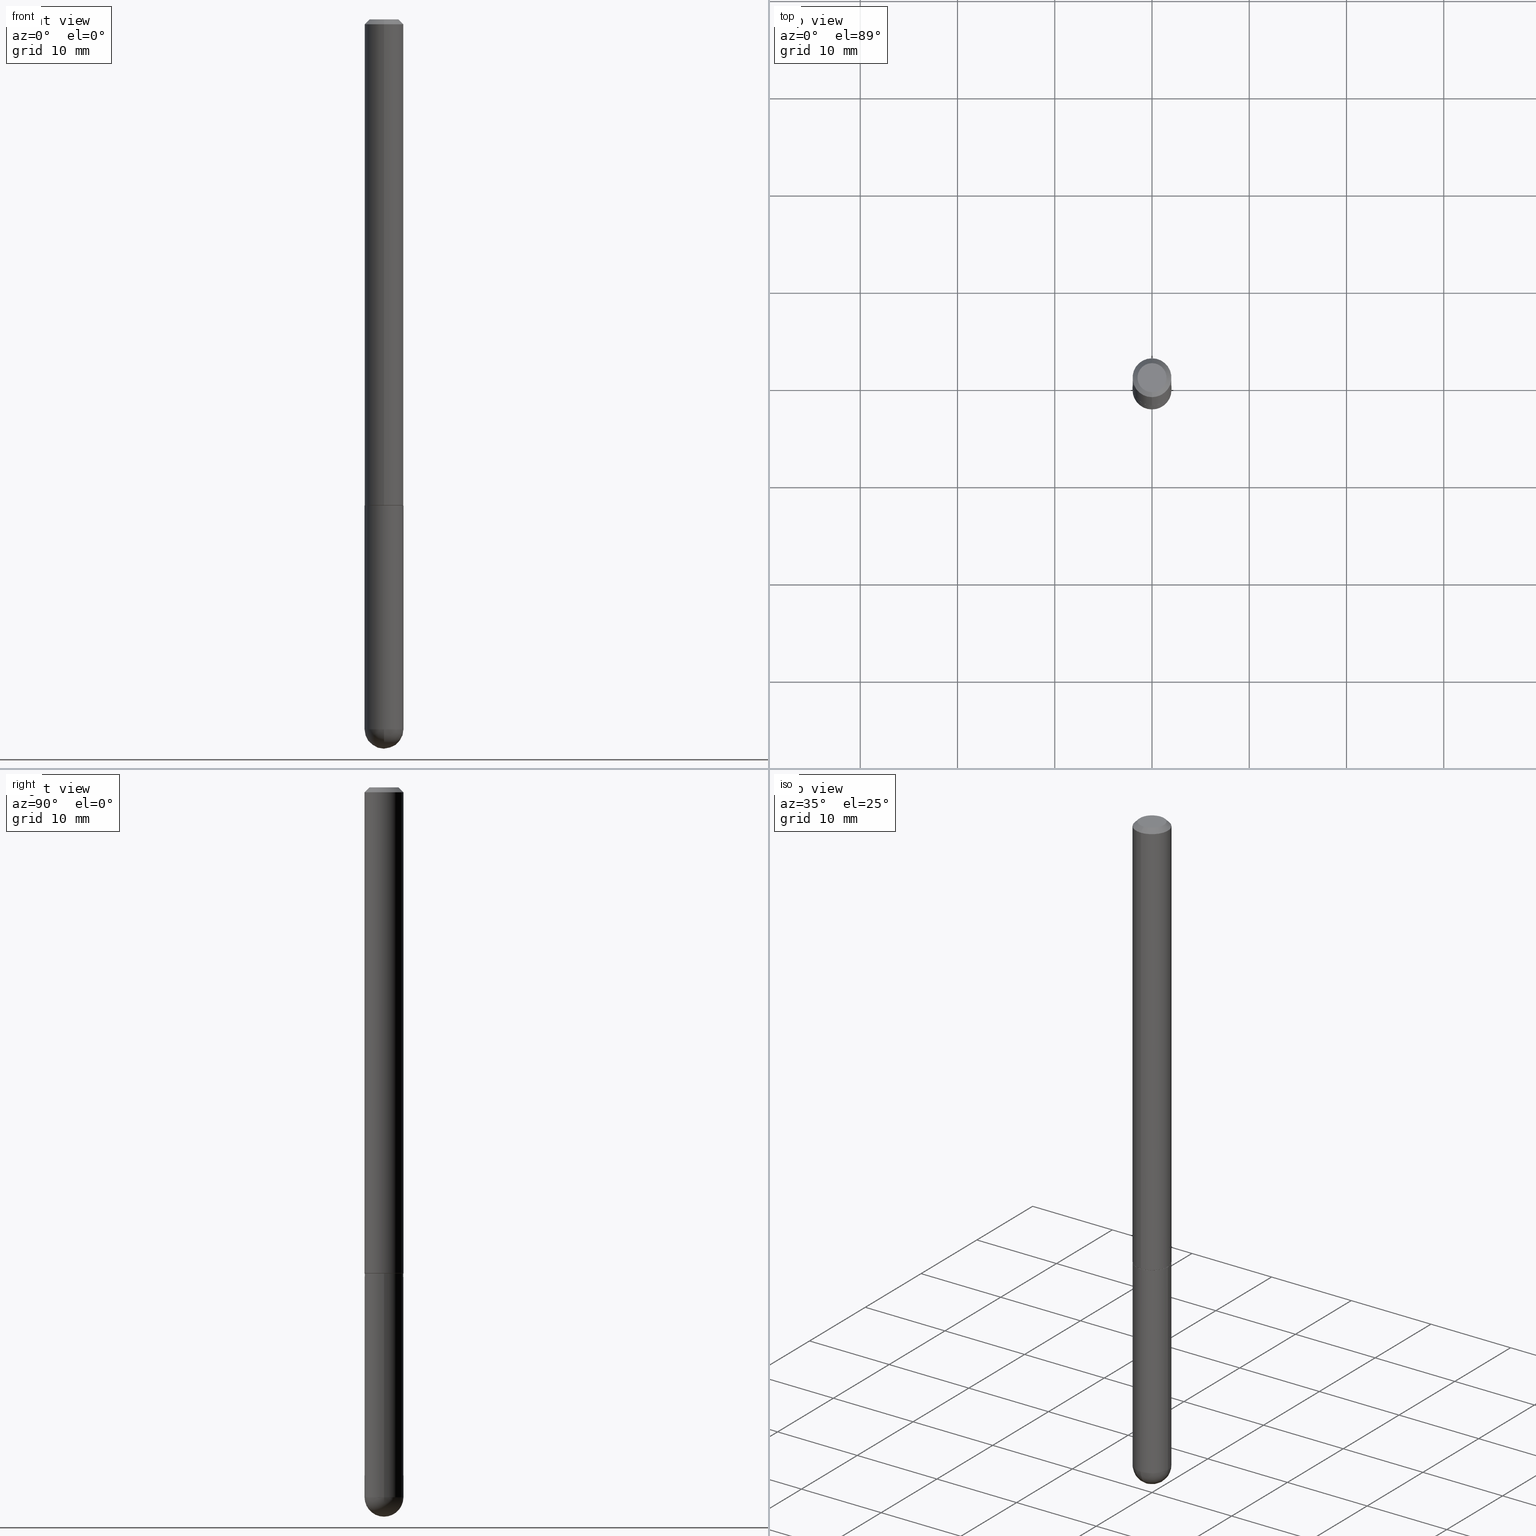
[diagram: canonical four-view strip — front | top / right | iso, engineering-drawing reading convention]
A machine part, canonical four-view strip (front | top / right | iso — engineering-drawing reading convention). The complete STEP part file that produces these views, byte-faithful:
ISO-10303-21;
HEADER;
FILE_DESCRIPTION (( 'STEP AP203' ),
    '1' );
FILE_NAME ('43504.STEP',
    '2024-04-10T11:43:44',
    ( '' ),
    ( '' ),
    'SwSTEP 2.0',
    'SolidWorks 2023',
    '' );
FILE_SCHEMA (( 'CONFIG_CONTROL_DESIGN' ));
ENDSEC;

DATA;
#1 = CIRCLE ( 'NONE', #163, 0.07875000000000000056 ) ;
#2 = CONICAL_SURFACE ( 'NONE', #176, 0.07875000000000000056, 0.7853981633974469467 ) ;
#3 = APPROVAL ( #12, 'UNSPECIFIED' ) ;
#4 = APPROVAL_DATE_TIME ( #59, #379 ) ;
#5 = PERSON_AND_ORGANIZATION_ROLE ( 'design_owner' ) ;
#6 = EDGE_CURVE ( 'NONE', #47, #192, #159, .T. ) ;
#7 = DIRECTION ( 'NONE',  ( -2.452606242276134078E-29, 3.481260124123204048E-15, 1.000000000000000000 ) ) ;
#8 = VECTOR ( 'NONE', #319, 39.37007874015748854 ) ;
#9 = DATE_AND_TIME ( #289, #100 ) ;
#10 = FACE_OUTER_BOUND ( 'NONE', #264, .T. ) ;
#11 = EDGE_LOOP ( 'NONE', ( #201, #141, #220, #87 ) ) ;
#12 = APPROVAL_STATUS ( 'not_yet_approved' ) ;
#13 = ORIENTED_EDGE ( 'NONE', *, *, #174, .T. ) ;
#14 = CIRCLE ( 'NONE', #296, 0.07774999999999997191 ) ;
#15 = DIRECTION ( 'NONE',  ( -2.452606242276133797E-29, 3.481260124123203654E-15, 1.000000000000000000 ) ) ;
#16 = ORIENTED_EDGE ( 'NONE', *, *, #316, .T. ) ;
#17 = FACE_OUTER_BOUND ( 'NONE', #327, .T. ) ;
#18 = VERTEX_POINT ( 'NONE', #303 ) ;
#19 = EDGE_CURVE ( 'NONE', #74, #127, #82, .T. ) ;
#20 = DIRECTION ( 'NONE',  ( -2.452606242276133797E-29, 3.481260124123203654E-15, 1.000000000000000000 ) ) ;
#21 = DIRECTION ( 'NONE',  ( -6.982962677686265922E-15, -1.000000000000000000, 3.481260124123204048E-15 ) ) ;
#22 = APPROVAL_DATE_TIME ( #396, #78 ) ;
#23 = CIRCLE ( 'NONE', #108, 0.07875000000000000056 ) ;
#24 = ADVANCED_FACE ( 'NONE', ( #242 ), #371, .T. ) ;
#25 = DIRECTION ( 'NONE',  ( -2.445468806185136597E-29, 3.491481338843145583E-15, 1.000000000000000000 ) ) ;
#26 = DESIGN_CONTEXT ( 'detailed design', #405, 'design' ) ;
#27 = DIRECTION ( 'NONE',  ( -2.445468806185136597E-29, 3.491481338843145583E-15, 1.000000000000000000 ) ) ;
#28 = ADVANCED_FACE ( 'NONE', ( #53 ), #29, .T. ) ;
#29 = CYLINDRICAL_SURFACE ( 'NONE', #224, 0.07874999999999997280 ) ;
#30 = EDGE_CURVE ( 'NONE', #299, #294, #325, .T. ) ;
#31 = CARTESIAN_POINT ( 'NONE',  ( 6.697279844502505818E-29, -1.050887431004219452E-14, -2.874049999999999994 ) ) ;
#32 = VECTOR ( 'NONE', #147, 39.37007874015748854 ) ;
#33 = APPROVAL_PERSON_ORGANIZATION ( #328, #78, #76 ) ;
#34 = CARTESIAN_POINT ( 'NONE',  ( 0.000000000000000000, 0.000000000000000000, 0.000000000000000000 ) ) ;
#35 = EDGE_CURVE ( 'NONE', #329, #324, #383, .T. ) ;
#36 = CC_DESIGN_DATE_AND_TIME_ASSIGNMENT ( #351, #64, ( #112 ) ) ;
#37 = CIRCLE ( 'NONE', #340, 0.07875000000000019484 ) ;
#38 = CARTESIAN_POINT ( 'NONE',  ( 4.905212484552271764E-31, -6.962520248246412533E-17, -0.02000000000000001776 ) ) ;
#39 = ORIENTED_EDGE ( 'NONE', *, *, #19, .F. ) ;
#40 = CALENDAR_DATE ( 2024, 10, 4 ) ;
#41 = EDGE_LOOP ( 'NONE', ( #238, #232 ) ) ;
#42 = EDGE_LOOP ( 'NONE', ( #73, #287, #16, #353 ) ) ;
#43 = CC_DESIGN_APPROVAL ( #78, ( #384 ) ) ;
#44 = CARTESIAN_POINT ( 'NONE',  ( -5.499083108677465071E-16, -0.07875000000000705047, -1.967499999999999361 ) ) ;
#45 = DIRECTION ( 'NONE',  ( -2.452606242276133797E-29, 3.481260124123203654E-15, 1.000000000000000000 ) ) ;
#46 = ORIENTED_EDGE ( 'NONE', *, *, #293, .T. ) ;
#47 = VERTEX_POINT ( 'NONE', #272 ) ;
#48 = VERTEX_POINT ( 'NONE', #372 ) ;
#49 = AXIS2_PLACEMENT_3D ( 'NONE', #177, #27, #306 ) ;
#50 = DIRECTION ( 'NONE',  ( -2.452606242276133797E-29, 3.481260124123203654E-15, 1.000000000000000000 ) ) ;
#51 = DIRECTION ( 'NONE',  ( 1.000000000000000000, -6.982962677686261977E-15, 0.000000000000000000 ) ) ;
#52 = DIMENSIONAL_EXPONENTS ( 1.000000000000000000, 0.000000000000000000, 0.000000000000000000, 0.000000000000000000, 0.000000000000000000, 0.000000000000000000, 0.000000000000000000 ) ;
#53 = FACE_OUTER_BOUND ( 'NONE', #134, .T. ) ;
#54 = CC_DESIGN_PERSON_AND_ORGANIZATION_ASSIGNMENT ( #251, #380, ( #229 ) ) ;
#55 = EDGE_LOOP ( 'NONE', ( #374, #79, #173, #104 ) ) ;
#56 = EDGE_CURVE ( 'NONE', #352, #329, #120, .T. ) ;
#57 = DIRECTION ( 'NONE',  ( -6.982962677686266711E-15, -1.000000000000000000, 3.513630860018346248E-15 ) ) ;
#58 = DIRECTION ( 'NONE',  ( -2.452606242276133797E-29, 3.481260124123203654E-15, 1.000000000000000000 ) ) ;
#59 = DATE_AND_TIME ( #388, #171 ) ;
#60 = CARTESIAN_POINT ( 'NONE',  ( 4.905212484552271764E-31, -6.962520248246412533E-17, -0.02000000000000001776 ) ) ;
#61 =( CONVERSION_BASED_UNIT ( 'INCH', #285 ) LENGTH_UNIT ( ) NAMED_UNIT ( #52 ) );
#62 = AXIS2_PLACEMENT_3D ( 'NONE', #225, #349, #322 ) ;
#63 = EDGE_CURVE ( 'NONE', #18, #352, #331, .T. ) ;
#64 = DATE_TIME_ROLE ( 'creation_date' ) ;
#65 = CARTESIAN_POINT ( 'NONE',  ( 5.499083108677938387E-16, 0.07874999999999993117, -0.02000000000000029185 ) ) ;
#66 = PERSON_AND_ORGANIZATION ( #315, #122 ) ;
#67 = CONICAL_SURFACE ( 'NONE', #62, 0.07774999999999997191, 0.7853981633975251064 ) ;
#68 = CIRCLE ( 'NONE', #297, 0.07774999999999997191 ) ;
#69 = ADVANCED_FACE ( 'NONE', ( #200 ), #269, .T. ) ;
#70 = ORIENTED_EDGE ( 'NONE', *, *, #338, .T. ) ;
#71 = CARTESIAN_POINT ( 'NONE',  ( -5.595524044110105652E-16, -0.07875000000001032563, -2.874049999999999550 ) ) ;
#72 = APPROVAL_STATUS ( 'not_yet_approved' ) ;
#73 = ORIENTED_EDGE ( 'NONE', *, *, #142, .F. ) ;
#74 = VERTEX_POINT ( 'NONE', #245 ) ;
#75 = EDGE_CURVE ( 'NONE', #260, #329, #392, .T. ) ;
#76 = APPROVAL_ROLE ( '' ) ;
#77 = DIRECTION ( 'NONE',  ( 1.000000000000000000, -6.982962677686264344E-15, 0.000000000000000000 ) ) ;
#78 = APPROVAL ( #72, 'UNSPECIFIED' ) ;
#79 = ORIENTED_EDGE ( 'NONE', *, *, #393, .T. ) ;
#80 = CARTESIAN_POINT ( 'NONE',  ( 7.028399622416392066E-29, -1.003469194190214264E-14, -2.874049999999999994 ) ) ;
#81 = DIRECTION ( 'NONE',  ( 6.982962677686265922E-15, 1.000000000000000000, -3.481260124123204048E-15 ) ) ;
#82 = LINE ( 'NONE', #333, #32 ) ;
#83 = DIRECTION ( 'NONE',  ( 1.000000000000000000, -6.982962677686267499E-15, 4.876176775795935793E-29 ) ) ;
#84 = AXIS2_PLACEMENT_3D ( 'NONE', #211, #302, #308 ) ;
#85 = DIRECTION ( 'NONE',  ( 4.937700262164540942E-15, 0.7071067811865441310, -0.7071067811865509034 ) ) ;
#86 = FACE_OUTER_BOUND ( 'NONE', #41, .T. ) ;
#87 = ORIENTED_EDGE ( 'NONE', *, *, #63, .F. ) ;
#88 = EDGE_CURVE ( 'NONE', #294, #299, #23, .T. ) ;
#89 = EDGE_CURVE ( 'NONE', #192, #47, #364, .T. ) ;
#90 = PLANE ( 'NONE',  #274 ) ;
#91 = CYLINDRICAL_SURFACE ( 'NONE', #332, 0.07875000000000009770 ) ;
#92 = CC_DESIGN_PERSON_AND_ORGANIZATION_ASSIGNMENT ( #172, #363, ( #229 ) ) ;
#93 = VECTOR ( 'NONE', #288, 39.37007874015748143 ) ;
#94 = APPROVAL_ROLE ( '' ) ;
#95 = DIRECTION ( 'NONE',  ( -2.452606242276133797E-29, 3.481260124123203654E-15, 1.000000000000000000 ) ) ;
#96 = FACE_OUTER_BOUND ( 'NONE', #241, .T. ) ;
#97 = PERSON_AND_ORGANIZATION ( #315, #122 ) ;
#98 = ORIENTED_EDGE ( 'NONE', *, *, #30, .T. ) ;
#99 = CIRCLE ( 'NONE', #317, 0.07875000000000019484 ) ;
#100 = LOCAL_TIME ( 7, 43, 44.00000000000000000, #347 ) ;
#101 = VERTEX_POINT ( 'NONE', #44 ) ;
#102 = DIRECTION ( 'NONE',  ( 6.982962677686265922E-15, 1.000000000000000000, -6.938026650575894754E-15 ) ) ;
#103 = ORIENTED_EDGE ( 'NONE', *, *, #282, .T. ) ;
#104 = ORIENTED_EDGE ( 'NONE', *, *, #35, .F. ) ;
#105 = ADVANCED_FACE ( 'NONE', ( #17 ), #110, .T. ) ;
#106 = DIRECTION ( 'NONE',  ( 2.452606242276133797E-29, -3.481260124123203654E-15, -1.000000000000000000 ) ) ;
#107 = COORDINATED_UNIVERSAL_TIME_OFFSET ( 5, 0, .BEHIND. ) ;
#108 = AXIS2_PLACEMENT_3D ( 'NONE', #205, #361, #265 ) ;
#109 = APPROVAL_PERSON_ORGANIZATION ( #66, #379, #261 ) ;
#110 = CYLINDRICAL_SURFACE ( 'NONE', #309, 0.07874999999999997280 ) ;
#111 = ORIENTED_EDGE ( 'NONE', *, *, #35, .T. ) ;
#112 = PRODUCT_DEFINITION ( 'UNKNOWN', '', #229, #26 ) ;
#113 = DIRECTION ( 'NONE',  ( -2.445468806185136877E-29, 3.491481338843145188E-15, 1.000000000000000000 ) ) ;
#114 = DIRECTION ( 'NONE',  ( -6.982962677686266711E-15, -1.000000000000000000, 3.513630860018346248E-15 ) ) ;
#115 = VECTOR ( 'NONE', #113, 39.37007874015748143 ) ;
#116 = AXIS2_PLACEMENT_3D ( 'NONE', #339, #277, #193 ) ;
#117 = LINE ( 'NONE', #373, #93 ) ;
#118 = CARTESIAN_POINT ( 'NONE',  ( 0.07875000000000000056, -7.422889326380523475E-15, -1.968499999999999694 ) ) ;
#119 = ORIENTED_EDGE ( 'NONE', *, *, #162, .T. ) ;
#120 = CIRCLE ( 'NONE', #170, 0.07874999999999997280 ) ;
#121 = AXIS2_PLACEMENT_3D ( 'NONE', #343, #216, #124 ) ;
#122 = ORGANIZATION ( 'UNSPECIFIED', 'UNSPECIFIED', '' ) ;
#123 =( NAMED_UNIT ( * ) PLANE_ANGLE_UNIT ( ) SI_UNIT ( $, .RADIAN. ) );
#124 = DIRECTION ( 'NONE',  ( -6.982962677686265922E-15, -1.000000000000000000, 3.481260124123203654E-15 ) ) ;
#125 = APPLICATION_PROTOCOL_DEFINITION ( 'international standard', 'config_control_design', 1994, #405 ) ;
#126 = CARTESIAN_POINT ( 'NONE',  ( -5.402642173245075938E-16, -0.07875000000000006994, -0.01999999999999974368 ) ) ;
#127 = VERTEX_POINT ( 'NONE', #321 ) ;
#128 = ORIENTED_EDGE ( 'NONE', *, *, #162, .F. ) ;
#129 = DIRECTION ( 'NONE',  ( 1.000000000000000000, -6.982962677686265922E-15, 4.883557194083112340E-29 ) ) ;
#130 = CARTESIAN_POINT ( 'NONE',  ( 4.827955387920569283E-29, -6.852860554336525173E-15, -1.968499999999999694 ) ) ;
#131 = AXIS2_PLACEMENT_3D ( 'NONE', #227, #145, #335 ) ;
#132 = DIRECTION ( 'NONE',  ( 1.000000000000000000, 0.000000000000000000, 0.000000000000000000 ) ) ;
#133 = UNCERTAINTY_MEASURE_WITH_UNIT (LENGTH_MEASURE( 1.000000000000000082E-05 ), #61, 'distance_accuracy_value', 'NONE');
#134 = EDGE_LOOP ( 'NONE', ( #369, #199, #111, #119, #375 ) ) ;
#135 = FACE_OUTER_BOUND ( 'NONE', #230, .T. ) ;
#136 = CARTESIAN_POINT ( 'NONE',  ( 6.893227730253229354E-29, -1.077900641870445043E-14, -2.952800000000000313 ) ) ;
#137 = CC_DESIGN_PERSON_AND_ORGANIZATION_ASSIGNMENT ( #292, #5, ( #188 ) ) ;
#138 = ORIENTED_EDGE ( 'NONE', *, *, #282, .F. ) ;
#139 = VECTOR ( 'NONE', #7, 39.37007874015748143 ) ;
#140 = ORIENTED_EDGE ( 'NONE', *, *, #19, .T. ) ;
#141 = ORIENTED_EDGE ( 'NONE', *, *, #75, .T. ) ;
#142 = EDGE_CURVE ( 'NONE', #47, #166, #390, .T. ) ;
#143 = EDGE_LOOP ( 'NONE', ( #366, #248, #103, #196 ) ) ;
#144 = SHAPE_DEFINITION_REPRESENTATION ( #337, #219 ) ;
#145 = DIRECTION ( 'NONE',  ( 2.438088387897960049E-29, -3.491481338843145188E-15, -1.000000000000000000 ) ) ;
#146 = ORIENTED_EDGE ( 'NONE', *, *, #189, .T. ) ;
#147 = DIRECTION ( 'NONE',  ( 5.024295867788447354E-15, 0.7071067811866040831, 0.7071067811864907293 ) ) ;
#148 = AXIS2_PLACEMENT_3D ( 'NONE', #31, #129, #191 ) ;
#149 = ADVANCED_FACE ( 'NONE', ( #96 ), #67, .T. ) ;
#150 = FACE_OUTER_BOUND ( 'NONE', #143, .T. ) ;
#151 = CARTESIAN_POINT ( 'NONE',  ( 7.028399622416392066E-29, -1.003469194190214264E-14, -2.874049999999999994 ) ) ;
#152 = ADVANCED_FACE ( 'NONE', ( #10 ), #387, .F. ) ;
#153 = CLOSED_SHELL ( 'NONE', ( #69, #410, #24, #357, #154, #149, #342, #350 ) ) ;
#154 = ADVANCED_FACE ( 'NONE', ( #150 ), #411, .T. ) ;
#155 = APPROVAL_PERSON_ORGANIZATION ( #97, #3, #94 ) ;
#156 = CARTESIAN_POINT ( 'NONE',  ( 4.800786840909316252E-16, 0.05875000000000019096, -3.630594907907506905E-16 ) ) ;
#157 = DIRECTION ( 'NONE',  ( -2.452606242276133797E-29, 3.481260124123203654E-15, 1.000000000000000000 ) ) ;
#158 = DIRECTION ( 'NONE',  ( 0.000000000000000000, 0.000000000000000000, 1.000000000000000000 ) ) ;
#159 = CIRCLE ( 'NONE', #180, 0.05875000000000019096 ) ;
#160 =( LENGTH_UNIT ( ) NAMED_UNIT ( * ) SI_UNIT ( $, .METRE. ) );
#161 = CARTESIAN_POINT ( 'NONE',  ( -5.429253481900587179E-16, -0.07775000000000682754, -1.968499999999999472 ) ) ;
#162 = EDGE_CURVE ( 'NONE', #324, #294, #381, .T. ) ;
#163 = AXIS2_PLACEMENT_3D ( 'NONE', #249, #184, #313 ) ;
#164 = APPLICATION_PROTOCOL_DEFINITION ( 'international standard', 'config_control_design', 1994, #197 ) ;
#165 = ORIENTED_EDGE ( 'NONE', *, *, #217, .T. ) ;
#166 = VERTEX_POINT ( 'NONE', #126 ) ;
#167 = SECURITY_CLASSIFICATION_LEVEL ( 'unclassified' ) ;
#168 = EDGE_CURVE ( 'NONE', #48, #101, #252, .T. ) ;
#169 = CARTESIAN_POINT ( 'NONE',  ( 6.697279844502505818E-29, -1.050887431004219452E-14, -2.874049999999999994 ) ) ;
#170 = AXIS2_PLACEMENT_3D ( 'NONE', #80, #178, #234 ) ;
#171 = LOCAL_TIME ( 7, 43, 44.00000000000000000, #194 ) ;
#172 = PERSON_AND_ORGANIZATION ( #315, #122 ) ;
#173 = ORIENTED_EDGE ( 'NONE', *, *, #174, .F. ) ;
#174 = EDGE_CURVE ( 'NONE', #324, #18, #236, .T. ) ;
#175 = AXIS2_PLACEMENT_3D ( 'NONE', #336, #106, #370 ) ;
#176 = AXIS2_PLACEMENT_3D ( 'NONE', #38, #185, #187 ) ;
#177 = CARTESIAN_POINT ( 'NONE',  ( 7.028399622416392066E-29, -1.003469194190214264E-14, -2.874049999999999994 ) ) ;
#178 = DIRECTION ( 'NONE',  ( -2.445468806185136597E-29, 3.491481338843145583E-15, 1.000000000000000000 ) ) ;
#179 = LINE ( 'NONE', #406, #115 ) ;
#180 = AXIS2_PLACEMENT_3D ( 'NONE', #206, #271, #21 ) ;
#181 = AXIS2_PLACEMENT_3D ( 'NONE', #34, #158, #132 ) ;
#182 = CARTESIAN_POINT ( 'NONE',  ( 4.827955387920569283E-29, -6.852860554336525173E-15, -1.968499999999999694 ) ) ;
#183 = DIRECTION ( 'NONE',  ( -1.000000000000000000, 6.982962677686265922E-15, -4.883557194083112901E-29 ) ) ;
#184 = DIRECTION ( 'NONE',  ( -2.452606242276133797E-29, 3.481260124123203654E-15, 1.000000000000000000 ) ) ;
#185 = DIRECTION ( 'NONE',  ( 2.452606242276133797E-29, -3.481260124123203654E-15, -1.000000000000000000 ) ) ;
#186 = CARTESIAN_POINT ( 'NONE',  ( 0.07874999999999997280, -5.499083108677933457E-16, 3.839989210939298316E-30 ) ) ;
#187 = DIRECTION ( 'NONE',  ( 6.982962677686264344E-15, 1.000000000000000000, -3.469013325287953293E-15 ) ) ;
#188 = PRODUCT ( '43504', '43504', '', ( #281 ) ) ;
#189 = EDGE_CURVE ( 'NONE', #101, #127, #37, .T. ) ;
#190 = DIRECTION ( 'NONE',  ( -2.445468806185136597E-29, 3.491481338843145583E-15, 1.000000000000000000 ) ) ;
#191 = DIRECTION ( 'NONE',  ( 6.982962677686265133E-15, 1.000000000000000000, 0.000000000000000000 ) ) ;
#192 = VERTEX_POINT ( 'NONE', #156 ) ;
#193 = DIRECTION ( 'NONE',  ( -6.982962677686265922E-15, -1.000000000000000000, 3.481260124123204048E-15 ) ) ;
#194 = COORDINATED_UNIVERSAL_TIME_OFFSET ( 5, 0, .BEHIND. ) ;
#195 = SPHERICAL_SURFACE ( 'NONE', #228, 0.07875000000000013933 ) ;
#196 = ORIENTED_EDGE ( 'NONE', *, *, #210, .F. ) ;
#197 = APPLICATION_CONTEXT ( 'configuration controlled 3d designs of mechanical parts and assemblies' ) ;
#198 = ORIENTED_EDGE ( 'NONE', *, *, #88, .F. ) ;
#199 = ORIENTED_EDGE ( 'NONE', *, *, #56, .T. ) ;
#200 = FACE_OUTER_BOUND ( 'NONE', #275, .T. ) ;
#201 = ORIENTED_EDGE ( 'NONE', *, *, #393, .F. ) ;
#202 = COORDINATED_UNIVERSAL_TIME_OFFSET ( 5, 0, .BEHIND. ) ;
#203 = SPHERICAL_SURFACE ( 'NONE', #208, 0.07875000000000013933 ) ;
#204 = CARTESIAN_POINT ( 'NONE',  ( 0.000000000000000000, 0.000000000000000000, 0.000000000000000000 ) ) ;
#205 = CARTESIAN_POINT ( 'NONE',  ( 4.813905344975440714E-29, -6.872981015512730918E-15, -1.968499999999999694 ) ) ;
#206 = CARTESIAN_POINT ( 'NONE',  ( 3.888250551355590980E-45, -5.519031699304581911E-31, -1.585354584985118215E-16 ) ) ;
#207 = DIRECTION ( 'NONE',  ( -2.445468806185136597E-29, 3.491481338843145583E-15, 1.000000000000000000 ) ) ;
#208 = AXIS2_PLACEMENT_3D ( 'NONE', #239, #183, #102 ) ;
#209 = LOCAL_TIME ( 7, 43, 44.00000000000000000, #223 ) ;
#210 = EDGE_CURVE ( 'NONE', #362, #166, #1, .T. ) ;
#211 = CARTESIAN_POINT ( 'NONE',  ( 6.697279844502505818E-29, -1.050887431004219452E-14, -2.874049999999999994 ) ) ;
#212 = ORIENTED_EDGE ( 'NONE', *, *, #168, .T. ) ;
#213 = CC_DESIGN_DATE_AND_TIME_ASSIGNMENT ( #330, #300, ( #384 ) ) ;
#214 = DIRECTION ( 'NONE',  ( 2.452606242276133237E-29, -3.481260124123204048E-15, -1.000000000000000000 ) ) ;
#215 = AXIS2_PLACEMENT_3D ( 'NONE', #279, #378, #222 ) ;
#216 = DIRECTION ( 'NONE',  ( -2.452606242276133797E-29, 3.481260124123203654E-15, 1.000000000000000000 ) ) ;
#217 = EDGE_CURVE ( 'NONE', #166, #362, #354, .T. ) ;
#218 = DIRECTION ( 'NONE',  ( -2.452606242276133797E-29, 3.481260124123203654E-15, 1.000000000000000000 ) ) ;
#219 = ADVANCED_BREP_SHAPE_REPRESENTATION ( '43504', ( #409, #263, #181 ), #246 ) ;
#220 = ORIENTED_EDGE ( 'NONE', *, *, #56, .F. ) ;
#221 = CARTESIAN_POINT ( 'NONE',  ( 4.102490573140694610E-16, 0.05875000000000019096, -2.837917615414947550E-16 ) ) ;
#222 = DIRECTION ( 'NONE',  ( 1.000000000000000000, -6.982962677686264344E-15, 0.000000000000000000 ) ) ;
#223 = COORDINATED_UNIVERSAL_TIME_OFFSET ( 5, 0, .BEHIND. ) ;
#224 = AXIS2_PLACEMENT_3D ( 'NONE', #204, #25, #83 ) ;
#225 = CARTESIAN_POINT ( 'NONE',  ( 4.827955387920569283E-29, -6.852860554336525173E-15, -1.968499999999999694 ) ) ;
#226 = CALENDAR_DATE ( 2024, 10, 4 ) ;
#227 = CARTESIAN_POINT ( 'NONE',  ( 5.499083108678415648E-16, 0.07874999999999311717, -1.968500000000000139 ) ) ;
#228 = AXIS2_PLACEMENT_3D ( 'NONE', #169, #262, #389 ) ;
#229 = PRODUCT_DEFINITION_FORMATION_WITH_SPECIFIED_SOURCE ( 'ANY', '', #188, .NOT_KNOWN. ) ;
#230 = EDGE_LOOP ( 'NONE', ( #146, #266, #358, #138 ) ) ;
#231 = ORIENTED_EDGE ( 'NONE', *, *, #6, .T. ) ;
#232 = ORIENTED_EDGE ( 'NONE', *, *, #293, .F. ) ;
#233 = LINE ( 'NONE', #286, #139 ) ;
#234 = DIRECTION ( 'NONE',  ( 1.000000000000000000, -6.982962677686264344E-15, 0.000000000000000000 ) ) ;
#235 = EDGE_LOOP ( 'NONE', ( #391, #398, #165, #258 ) ) ;
#236 = CIRCLE ( 'NONE', #215, 0.07874999999999997280 ) ;
#237 = ADVANCED_FACE ( 'NONE', ( #367 ), #203, .T. ) ;
#238 = ORIENTED_EDGE ( 'NONE', *, *, #338, .F. ) ;
#239 = CARTESIAN_POINT ( 'NONE',  ( 6.697279844502505818E-29, -1.050887431004219452E-14, -2.874049999999999994 ) ) ;
#240 = DIRECTION ( 'NONE',  ( -6.982962677686265922E-15, -1.000000000000000000, 3.481260124123204048E-15 ) ) ;
#241 = EDGE_LOOP ( 'NONE', ( #39, #46, #212, #291 ) ) ;
#242 = FACE_OUTER_BOUND ( 'NONE', #235, .T. ) ;
#243 = ADVANCED_FACE ( 'NONE', ( #341 ), #195, .T. ) ;
#244 = LINE ( 'NONE', #312, #412 ) ;
#245 = CARTESIAN_POINT ( 'NONE',  ( 5.559996907323272070E-16, 0.07774999999999313016, -1.968500000000000139 ) ) ;
#246 =( GEOMETRIC_REPRESENTATION_CONTEXT ( 3 ) GLOBAL_UNCERTAINTY_ASSIGNED_CONTEXT ( ( #133 ) ) GLOBAL_UNIT_ASSIGNED_CONTEXT ( ( #61, #123, #314 ) ) REPRESENTATION_CONTEXT ( 'NONE', 'WORKASPACE' ) );
#247 = PLANE ( 'NONE',  #116 ) ;
#248 = ORIENTED_EDGE ( 'NONE', *, *, #267, .T. ) ;
#249 = CARTESIAN_POINT ( 'NONE',  ( 4.905212484552271764E-31, -6.962520248246412533E-17, -0.02000000000000001776 ) ) ;
#250 = AXIS2_PLACEMENT_3D ( 'NONE', #397, #20, #240 ) ;
#251 = PERSON_AND_ORGANIZATION ( #315, #122 ) ;
#252 = LINE ( 'NONE', #161, #8 ) ;
#253 = DIRECTION ( 'NONE',  ( -6.982962677686265922E-15, -1.000000000000000000, 3.481260124123203654E-15 ) ) ;
#254 = AXIS2_PLACEMENT_3D ( 'NONE', #403, #45, #114 ) ;
#255 = LOCAL_TIME ( 7, 43, 44.00000000000000000, #202 ) ;
#256 = PRODUCT_RELATED_PRODUCT_CATEGORY ( 'detail', '', ( #188 ) ) ;
#257 = CARTESIAN_POINT ( 'NONE',  ( -5.402642173245075938E-16, -0.07875000000000006994, -0.01999999999999974368 ) ) ;
#258 = ORIENTED_EDGE ( 'NONE', *, *, #316, .F. ) ;
#259 = PERSON_AND_ORGANIZATION ( #315, #122 ) ;
#260 = VERTEX_POINT ( 'NONE', #136 ) ;
#261 = APPROVAL_ROLE ( '' ) ;
#262 = DIRECTION ( 'NONE',  ( -1.000000000000000000, 6.982962677686265922E-15, -4.883557194083112901E-29 ) ) ;
#263 = MANIFOLD_SOLID_BREP ( 'Body-Move/Copy2[2]', #153 ) ;
#264 = EDGE_LOOP ( 'NONE', ( #345, #98 ) ) ;
#265 = DIRECTION ( 'NONE',  ( 1.000000000000000000, -6.982962677686261977E-15, 0.000000000000000000 ) ) ;
#266 = ORIENTED_EDGE ( 'NONE', *, *, #326, .T. ) ;
#267 = EDGE_CURVE ( 'NONE', #127, #101, #99, .T. ) ;
#268 = EDGE_LOOP ( 'NONE', ( #395, #231 ) ) ;
#269 = CONICAL_SURFACE ( 'NONE', #254, 0.07774999999999997191, 0.7853981633975251064 ) ;
#270 = CC_DESIGN_SECURITY_CLASSIFICATION ( #384, ( #229 ) ) ;
#271 = DIRECTION ( 'NONE',  ( -2.452606242276133797E-29, 3.481260124123203654E-15, 1.000000000000000000 ) ) ;
#272 = CARTESIAN_POINT ( 'NONE',  ( -4.716592373467931499E-16, -0.05875000000000019096, 4.598857379372706585E-17 ) ) ;
#273 = AXIS2_PLACEMENT_3D ( 'NONE', #151, #407, #77 ) ;
#274 = AXIS2_PLACEMENT_3D ( 'NONE', #221, #214, #81 ) ;
#275 = EDGE_LOOP ( 'NONE', ( #70, #140, #348, #400 ) ) ;
#276 = CARTESIAN_POINT ( 'NONE',  ( 4.825502781678292621E-29, -6.849379294212400691E-15, -1.967499999999999805 ) ) ;
#277 = DIRECTION ( 'NONE',  ( -2.452606242276133237E-29, 3.481260124123204048E-15, 1.000000000000000000 ) ) ;
#278 = CARTESIAN_POINT ( 'NONE',  ( -0.07875000000000000056, -7.894284074296357585E-15, -1.968499999999999694 ) ) ;
#279 = CARTESIAN_POINT ( 'NONE',  ( 7.028399622416392066E-29, -1.003469194190214264E-14, -2.874049999999999994 ) ) ;
#280 = VECTOR ( 'NONE', #385, 39.37007874015748143 ) ;
#281 = MECHANICAL_CONTEXT ( 'NONE', #197, 'mechanical' ) ;
#282 = EDGE_CURVE ( 'NONE', #101, #166, #233, .T. ) ;
#283 = DIRECTION ( 'NONE',  ( -2.445468806185136877E-29, 3.491481338843145188E-15, 1.000000000000000000 ) ) ;
#284 = CC_DESIGN_PERSON_AND_ORGANIZATION_ASSIGNMENT ( #259, #382, ( #112 ) ) ;
#285 = LENGTH_MEASURE_WITH_UNIT ( LENGTH_MEASURE( 0.02539999999999999897 ), #160 );
#286 = CARTESIAN_POINT ( 'NONE',  ( -5.499083108677941345E-16, -0.07875000000000009770, 2.741492347747026245E-16 ) ) ;
#287 = ORIENTED_EDGE ( 'NONE', *, *, #89, .F. ) ;
#288 = DIRECTION ( 'NONE',  ( -2.452606242276134078E-29, 3.481260124123204048E-15, 1.000000000000000000 ) ) ;
#289 = CALENDAR_DATE ( 2024, 10, 4 ) ;
#290 = ORIENTED_EDGE ( 'NONE', *, *, #310, .T. ) ;
#291 = ORIENTED_EDGE ( 'NONE', *, *, #267, .F. ) ;
#292 = PERSON_AND_ORGANIZATION ( #315, #122 ) ;
#293 = EDGE_CURVE ( 'NONE', #74, #48, #14, .T. ) ;
#294 = VERTEX_POINT ( 'NONE', #118 ) ;
#295 = CARTESIAN_POINT ( 'NONE',  ( 4.825502781678292621E-29, -6.849379294212400691E-15, -1.967499999999999805 ) ) ;
#296 = AXIS2_PLACEMENT_3D ( 'NONE', #130, #95, #57 ) ;
#297 = AXIS2_PLACEMENT_3D ( 'NONE', #182, #157, #408 ) ;
#298 = DIRECTION ( 'NONE',  ( 1.000000000000000000, -6.982962677686267499E-15, 4.876176775795935793E-29 ) ) ;
#299 = VERTEX_POINT ( 'NONE', #278 ) ;
#300 = DATE_TIME_ROLE ( 'classification_date' ) ;
#301 = CALENDAR_DATE ( 2024, 10, 4 ) ;
#302 = DIRECTION ( 'NONE',  ( -1.000000000000000000, 7.105427357601001070E-15, -4.926315508542082329E-29 ) ) ;
#303 = CARTESIAN_POINT ( 'NONE',  ( 5.499083108678623710E-16, 0.07874999999998978650, -2.874050000000000438 ) ) ;
#304 = VECTOR ( 'NONE', #283, 39.37007874015748143 ) ;
#305 = LOCAL_TIME ( 7, 43, 44.00000000000000000, #107 ) ;
#306 = DIRECTION ( 'NONE',  ( 1.000000000000000000, -6.982962677686264344E-15, 0.000000000000000000 ) ) ;
#307 = CARTESIAN_POINT ( 'NONE',  ( 0.07874999999999997280, -9.003744789575230521E-15, -2.874049999999999994 ) ) ;
#308 = DIRECTION ( 'NONE',  ( -7.105427357600999492E-15, -1.000000000000000000, 0.000000000000000000 ) ) ;
#309 = AXIS2_PLACEMENT_3D ( 'NONE', #368, #190, #298 ) ;
#310 = EDGE_CURVE ( 'NONE', #352, #299, #179, .T. ) ;
#311 = DIRECTION ( 'NONE',  ( -6.982962677686265922E-15, -1.000000000000000000, 3.469013325287944616E-15 ) ) ;
#312 = CARTESIAN_POINT ( 'NONE',  ( 5.499083108677938387E-16, 0.07874999999999993117, -0.02000000000000029185 ) ) ;
#313 = DIRECTION ( 'NONE',  ( -6.982962677686264344E-15, -1.000000000000000000, 3.469013325287953293E-15 ) ) ;
#314 =( NAMED_UNIT ( * ) SI_UNIT ( $, .STERADIAN. ) SOLID_ANGLE_UNIT ( ) );
#315 = PERSON ( 'UNSPECIFIED', 'UNSPECIFIED', 'UNSPECIFIED', ('UNSPECIFIED'), ('UNSPECIFIED'), ('UNSPECIFIED') ) ;
#316 = EDGE_CURVE ( 'NONE', #192, #362, #244, .T. ) ;
#317 = AXIS2_PLACEMENT_3D ( 'NONE', #295, #15, #356 ) ;
#318 = CIRCLE ( 'NONE', #148, 0.07875000000000013933 ) ;
#319 = DIRECTION ( 'NONE',  ( -4.937700262164926695E-15, -0.7071067811865993091, 0.7071067811864956143 ) ) ;
#320 = APPROVAL_STATUS ( 'not_yet_approved' ) ;
#321 = CARTESIAN_POINT ( 'NONE',  ( 5.595524044111042425E-16, 0.07874999999999335309, -1.967500000000000027 ) ) ;
#322 = DIRECTION ( 'NONE',  ( -6.982962677686266711E-15, -1.000000000000000000, 3.513630860018346248E-15 ) ) ;
#323 = FACE_OUTER_BOUND ( 'NONE', #268, .T. ) ;
#324 = VERTEX_POINT ( 'NONE', #307 ) ;
#325 = CIRCLE ( 'NONE', #376, 0.07875000000000000056 ) ;
#326 = EDGE_CURVE ( 'NONE', #127, #362, #117, .T. ) ;
#327 = EDGE_LOOP ( 'NONE', ( #404, #290, #198, #128, #13 ) ) ;
#328 = PERSON_AND_ORGANIZATION ( #315, #122 ) ;
#329 = VERTEX_POINT ( 'NONE', #71 ) ;
#330 = DATE_AND_TIME ( #301, #305 ) ;
#331 = CIRCLE ( 'NONE', #273, 0.07874999999999997280 ) ;
#332 = AXIS2_PLACEMENT_3D ( 'NONE', #344, #218, #253 ) ;
#333 = CARTESIAN_POINT ( 'NONE',  ( 5.524469770535259141E-16, 0.07774999999999313016, -1.968500000000000139 ) ) ;
#334 = CLOSED_SHELL ( 'NONE', ( #105, #237, #243, #152, #28 ) ) ;
#335 = DIRECTION ( 'NONE',  ( -1.000000000000000000, 6.982962677686265922E-15, -4.876176775795935793E-29 ) ) ;
#336 = CARTESIAN_POINT ( 'NONE',  ( 4.905212484552271764E-31, -6.962520248246412533E-17, -0.02000000000000001776 ) ) ;
#337 = PRODUCT_DEFINITION_SHAPE ( 'NONE', 'NONE',  #112 ) ;
#338 = EDGE_CURVE ( 'NONE', #48, #74, #68, .T. ) ;
#339 = CARTESIAN_POINT ( 'NONE',  ( 4.827955387920569283E-29, -6.852860554336525173E-15, -1.968499999999999694 ) ) ;
#340 = AXIS2_PLACEMENT_3D ( 'NONE', #276, #58, #311 ) ;
#341 = FACE_OUTER_BOUND ( 'NONE', #55, .T. ) ;
#342 = ADVANCED_FACE ( 'NONE', ( #86 ), #247, .F. ) ;
#343 = CARTESIAN_POINT ( 'NONE',  ( 0.000000000000000000, 0.000000000000000000, 0.000000000000000000 ) ) ;
#344 = CARTESIAN_POINT ( 'NONE',  ( 0.000000000000000000, 0.000000000000000000, 0.000000000000000000 ) ) ;
#345 = ORIENTED_EDGE ( 'NONE', *, *, #88, .T. ) ;
#346 = CC_DESIGN_APPROVAL ( #3, ( #112 ) ) ;
#347 = COORDINATED_UNIVERSAL_TIME_OFFSET ( 5, 0, .BEHIND. ) ;
#348 = ORIENTED_EDGE ( 'NONE', *, *, #189, .F. ) ;
#349 = DIRECTION ( 'NONE',  ( -2.452606242276133797E-29, 3.481260124123203654E-15, 1.000000000000000000 ) ) ;
#350 = ADVANCED_FACE ( 'NONE', ( #323 ), #90, .F. ) ;
#351 = DATE_AND_TIME ( #226, #209 ) ;
#352 = VERTEX_POINT ( 'NONE', #394 ) ;
#353 = ORIENTED_EDGE ( 'NONE', *, *, #210, .T. ) ;
#354 = CIRCLE ( 'NONE', #402, 0.07875000000000000056 ) ;
#355 = CC_DESIGN_APPROVAL ( #379, ( #229 ) ) ;
#356 = DIRECTION ( 'NONE',  ( -6.982962677686265922E-15, -1.000000000000000000, 3.469013325287944616E-15 ) ) ;
#357 = ADVANCED_FACE ( 'NONE', ( #377 ), #2, .T. ) ;
#358 = ORIENTED_EDGE ( 'NONE', *, *, #217, .F. ) ;
#359 = PERSON_AND_ORGANIZATION ( #315, #122 ) ;
#360 = CC_DESIGN_PERSON_AND_ORGANIZATION_ASSIGNMENT ( #359, #399, ( #384 ) ) ;
#361 = DIRECTION ( 'NONE',  ( -2.445468806185136597E-29, 3.491481338843145583E-15, 1.000000000000000000 ) ) ;
#362 = VERTEX_POINT ( 'NONE', #65 ) ;
#363 = PERSON_AND_ORGANIZATION_ROLE ( 'design_supplier' ) ;
#364 = CIRCLE ( 'NONE', #250, 0.05875000000000019096 ) ;
#365 = CARTESIAN_POINT ( 'NONE',  ( 4.813905344975440714E-29, -6.872981015512730918E-15, -1.968499999999999694 ) ) ;
#366 = ORIENTED_EDGE ( 'NONE', *, *, #326, .F. ) ;
#367 = FACE_OUTER_BOUND ( 'NONE', #11, .T. ) ;
#368 = CARTESIAN_POINT ( 'NONE',  ( 0.000000000000000000, 0.000000000000000000, 0.000000000000000000 ) ) ;
#369 = ORIENTED_EDGE ( 'NONE', *, *, #310, .F. ) ;
#370 = DIRECTION ( 'NONE',  ( 6.982962677686264344E-15, 1.000000000000000000, -3.469013325287953293E-15 ) ) ;
#371 = CONICAL_SURFACE ( 'NONE', #175, 0.07875000000000000056, 0.7853981633974469467 ) ;
#372 = CARTESIAN_POINT ( 'NONE',  ( -5.429253481900587179E-16, -0.07775000000000682754, -1.968499999999999472 ) ) ;
#373 = CARTESIAN_POINT ( 'NONE',  ( 5.595524044110794920E-16, 0.07875000000000009770, -2.741492347747026245E-16 ) ) ;
#374 = ORIENTED_EDGE ( 'NONE', *, *, #75, .F. ) ;
#375 = ORIENTED_EDGE ( 'NONE', *, *, #30, .F. ) ;
#376 = AXIS2_PLACEMENT_3D ( 'NONE', #365, #207, #51 ) ;
#377 = FACE_OUTER_BOUND ( 'NONE', #42, .T. ) ;
#378 = DIRECTION ( 'NONE',  ( -2.445468806185136597E-29, 3.491481338843145583E-15, 1.000000000000000000 ) ) ;
#379 = APPROVAL ( #320, 'UNSPECIFIED' ) ;
#380 = PERSON_AND_ORGANIZATION_ROLE ( 'creator' ) ;
#381 = LINE ( 'NONE', #186, #304 ) ;
#382 = PERSON_AND_ORGANIZATION_ROLE ( 'creator' ) ;
#383 = CIRCLE ( 'NONE', #49, 0.07874999999999997280 ) ;
#384 = SECURITY_CLASSIFICATION ( '', '', #167 ) ;
#385 = DIRECTION ( 'NONE',  ( -4.851104656540957175E-15, -0.7071067811865490160, -0.7071067811865460184 ) ) ;
#386 = APPROVAL_DATE_TIME ( #9, #3 ) ;
#387 = PLANE ( 'NONE',  #131 ) ;
#388 = CALENDAR_DATE ( 2024, 10, 4 ) ;
#389 = DIRECTION ( 'NONE',  ( 6.982962677686265922E-15, 1.000000000000000000, -6.938026650575894754E-15 ) ) ;
#390 = LINE ( 'NONE', #257, #280 ) ;
#391 = ORIENTED_EDGE ( 'NONE', *, *, #6, .F. ) ;
#392 = CIRCLE ( 'NONE', #84, 0.07875000000000013933 ) ;
#393 = EDGE_CURVE ( 'NONE', #260, #18, #318, .T. ) ;
#394 = CARTESIAN_POINT ( 'NONE',  ( -0.07874999999999997280, -7.894284074296357585E-15, -2.874049999999999994 ) ) ;
#395 = ORIENTED_EDGE ( 'NONE', *, *, #89, .T. ) ;
#396 = DATE_AND_TIME ( #40, #255 ) ;
#397 = CARTESIAN_POINT ( 'NONE',  ( 3.888250551355590980E-45, -5.519031699304581911E-31, -1.585354584985118215E-16 ) ) ;
#398 = ORIENTED_EDGE ( 'NONE', *, *, #142, .T. ) ;
#399 = PERSON_AND_ORGANIZATION_ROLE ( 'classification_officer' ) ;
#400 = ORIENTED_EDGE ( 'NONE', *, *, #168, .F. ) ;
#401 = DIRECTION ( 'NONE',  ( -6.982962677686264344E-15, -1.000000000000000000, 3.469013325287953293E-15 ) ) ;
#402 = AXIS2_PLACEMENT_3D ( 'NONE', #60, #50, #401 ) ;
#403 = CARTESIAN_POINT ( 'NONE',  ( 4.827955387920569283E-29, -6.852860554336525173E-15, -1.968499999999999694 ) ) ;
#404 = ORIENTED_EDGE ( 'NONE', *, *, #63, .T. ) ;
#405 = APPLICATION_CONTEXT ( 'configuration controlled 3d designs of mechanical parts and assemblies' ) ;
#406 = CARTESIAN_POINT ( 'NONE',  ( -0.07874999999999997280, 5.595524044110787031E-16, -3.873661383575737091E-30 ) ) ;
#407 = DIRECTION ( 'NONE',  ( -2.445468806185136597E-29, 3.491481338843145583E-15, 1.000000000000000000 ) ) ;
#408 = DIRECTION ( 'NONE',  ( -6.982962677686266711E-15, -1.000000000000000000, 3.513630860018346248E-15 ) ) ;
#409 = MANIFOLD_SOLID_BREP ( 'Body-Move/Copy2[1]', #334 ) ;
#410 = ADVANCED_FACE ( 'NONE', ( #135 ), #91, .T. ) ;
#411 = CYLINDRICAL_SURFACE ( 'NONE', #121, 0.07875000000000009770 ) ;
#412 = VECTOR ( 'NONE', #85, 39.37007874015748143 ) ;
ENDSEC;
END-ISO-10303-21;
